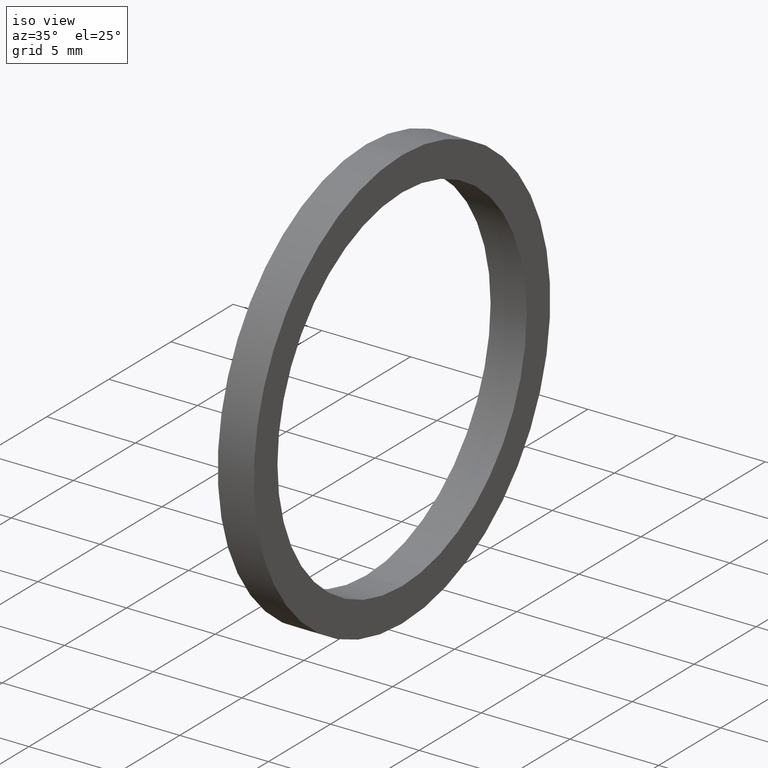
[diagram: clean part render]
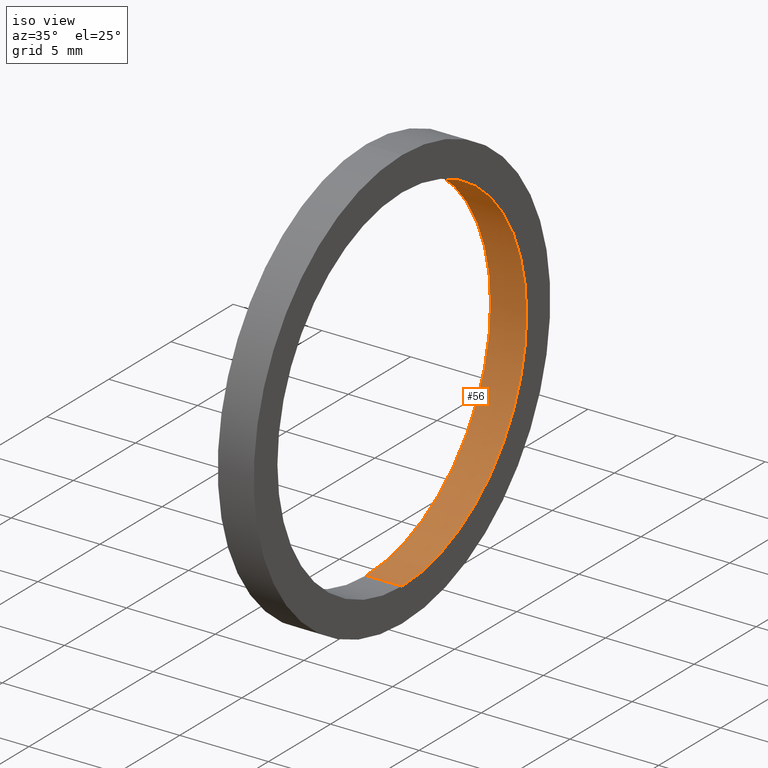
[diagram: same view with one face highlighted and labeled with its STEP entity id]
A machine part, iso view. The second image highlights one B-rep face of the part: STEP entity #56.
In plain terms, the highlighted cylindrical surface (partial cylindrical patch) has radius 10.033 mm, axis along (-1, 0, 0).
Its self-contained STEP definition (entity closure, byte-faithful):
#7 = EDGE_LOOP ( 'NONE', ( #57, #38, #39, #40 ) ) ;
#8 = EDGE_CURVE ( 'NONE', #14, #37, #138, .T. ) ;
#12 = EDGE_CURVE ( 'NONE', #34, #14, #123, .T. ) ;
#14 = VERTEX_POINT ( 'NONE', #114 ) ;
#33 = VERTEX_POINT ( 'NONE', #218 ) ;
#34 = VERTEX_POINT ( 'NONE', #217 ) ;
#36 = EDGE_CURVE ( 'NONE', #33, #37, #216, .T. ) ;
#37 = VERTEX_POINT ( 'NONE', #212 ) ;
#38 = ORIENTED_EDGE ( 'NONE', *, *, #231, .F. ) ;
#39 = ORIENTED_EDGE ( 'NONE', *, *, #12, .T. ) ;
#40 = ORIENTED_EDGE ( 'NONE', *, *, #8, .T. ) ;
#56 = ADVANCED_FACE ( 'NONE', ( #189 ), #187, .F. ) ;
#57 = ORIENTED_EDGE ( 'NONE', *, *, #36, .F. ) ;
#67 = DIRECTION ( 'NONE',  ( 0.0000000000000000000, 0.0000000000000000000, 1.000000000000000000 ) ) ;
#68 = DIRECTION ( 'NONE',  ( -1.000000000000000000, 0.0000000000000000000, 0.0000000000000000000 ) ) ;
#69 = CARTESIAN_POINT ( 'NONE',  ( 0.07999999999999996000, 0.0000000000000000000, 0.0000000000000000000 ) ) ;
#70 = AXIS2_PLACEMENT_3D ( 'NONE', #69, #68, #67 ) ;
#71 = CIRCLE ( 'NONE', #70, 0.3950000000000000200 ) ;
#95 = DIRECTION ( 'NONE',  ( 0.0000000000000000000, 0.0000000000000000000, 1.000000000000000000 ) ) ;
#96 = DIRECTION ( 'NONE',  ( -1.000000000000000000, 0.0000000000000000000, 0.0000000000000000000 ) ) ;
#97 = CARTESIAN_POINT ( 'NONE',  ( -1.721125226614714300, 0.0000000000000000000, 0.0000000000000000000 ) ) ;
#114 = CARTESIAN_POINT ( 'NONE',  ( 0.0000000000000000000, 0.0000000000000000000, 0.3950000000000000200 ) ) ;
#120 = DIRECTION ( 'NONE',  ( -1.000000000000000000, 0.0000000000000000000, 0.0000000000000000000 ) ) ;
#121 = VECTOR ( 'NONE', #120, 39.37007874015748100 ) ;
#122 = CARTESIAN_POINT ( 'NONE',  ( -1.721125226614714300, 0.0000000000000000000, 0.3950000000000000200 ) ) ;
#123 = LINE ( 'NONE', #122, #121 ) ;
#130 = DIRECTION ( 'NONE',  ( 0.0000000000000000000, 0.0000000000000000000, 1.000000000000000000 ) ) ;
#131 = DIRECTION ( 'NONE',  ( -1.000000000000000000, 0.0000000000000000000, 0.0000000000000000000 ) ) ;
#132 = CARTESIAN_POINT ( 'NONE',  ( 0.0000000000000000000, 0.0000000000000000000, 0.0000000000000000000 ) ) ;
#133 = AXIS2_PLACEMENT_3D ( 'NONE', #132, #131, #130 ) ;
#138 = CIRCLE ( 'NONE', #133, 0.3950000000000000200 ) ;
#187 = CYLINDRICAL_SURFACE ( 'NONE', #188, 0.3950000000000000200 ) ;
#188 = AXIS2_PLACEMENT_3D ( 'NONE', #97, #96, #95 ) ;
#189 = FACE_OUTER_BOUND ( 'NONE', #7, .T. ) ;
#212 = CARTESIAN_POINT ( 'NONE',  ( 0.0000000000000000000, 4.837354856632045600E-017, -0.3950000000000000200 ) ) ;
#213 = DIRECTION ( 'NONE',  ( -1.000000000000000000, 0.0000000000000000000, 0.0000000000000000000 ) ) ;
#214 = VECTOR ( 'NONE', #213, 39.37007874015748100 ) ;
#215 = CARTESIAN_POINT ( 'NONE',  ( -1.721125226614714300, 4.837354856632045600E-017, -0.3950000000000000200 ) ) ;
#216 = LINE ( 'NONE', #215, #214 ) ;
#217 = CARTESIAN_POINT ( 'NONE',  ( 0.07999999999999996000, 0.0000000000000000000, 0.3950000000000000200 ) ) ;
#218 = CARTESIAN_POINT ( 'NONE',  ( 0.07999999999999996000, 4.837354856632045600E-017, -0.3950000000000000200 ) ) ;
#231 = EDGE_CURVE ( 'NONE', #34, #33, #71, .T. ) ;